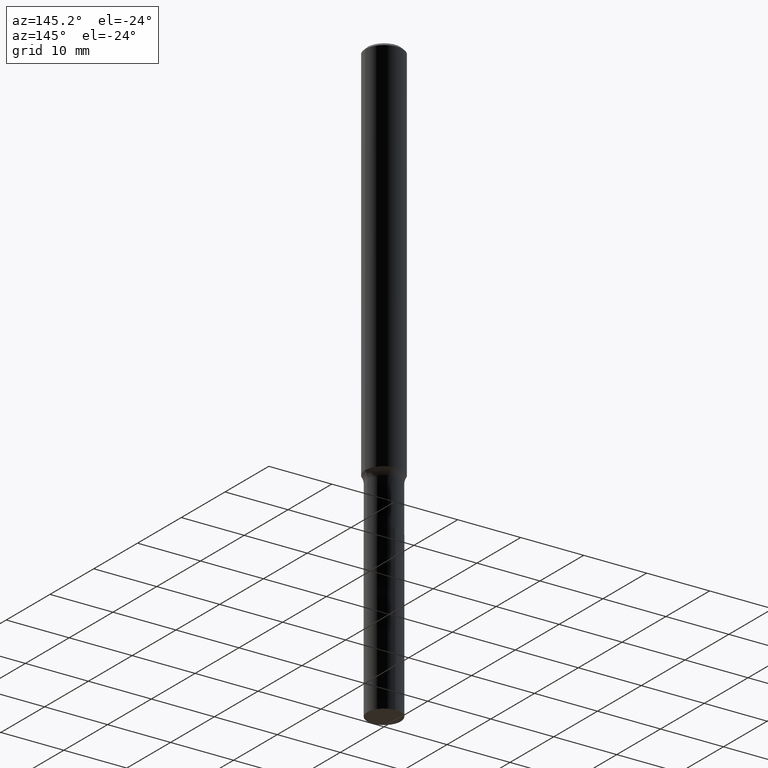
[diagram: clean part render]
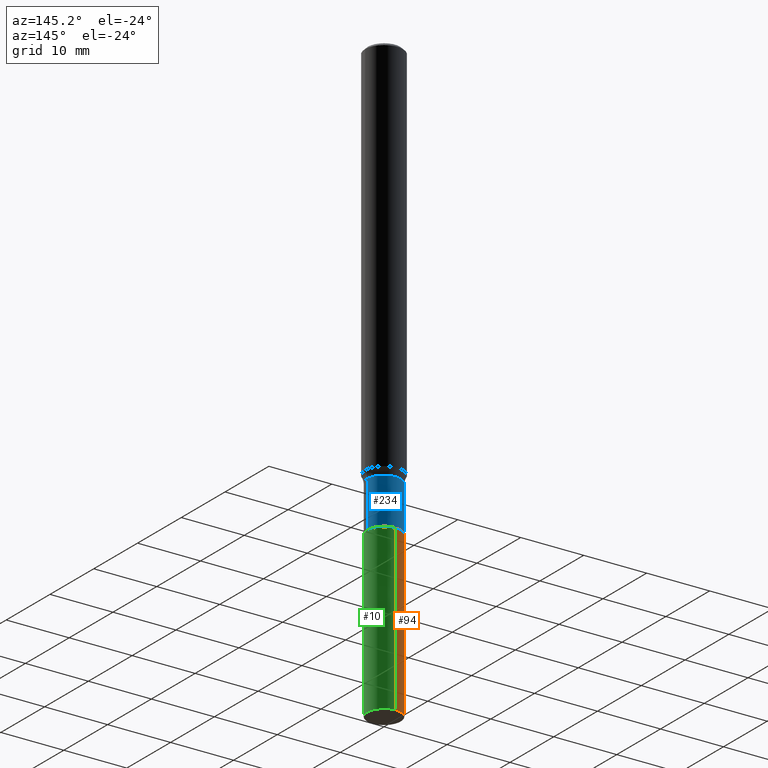
[diagram: same view with three faces highlighted in distinct colors, each labeled with its STEP entity id]
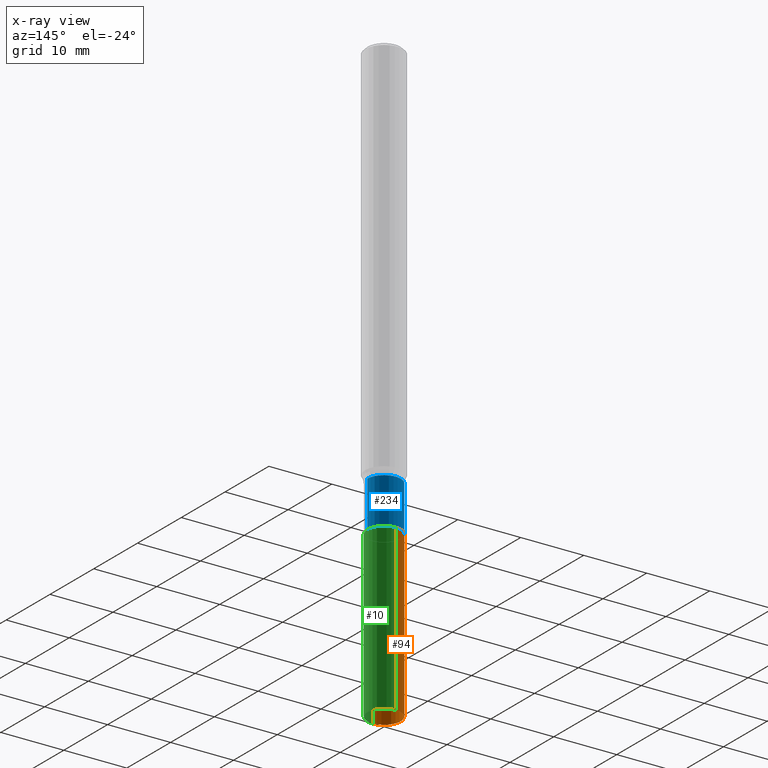
[diagram: x-ray of the same camera — body ghosted, the three highlighted faces saturated]
A machine part, auxiliary view with three faces highlighted in distinct colors.
The next image is the same camera in x-ray (body ghosted, the three faces saturated) — at least one of them is partly hidden behind the body in this view.
Their STEP definitions:

[orange] entity #94 — the highlighted cylindrical surface (edge-blend (fillet) strip) has radius 2.6543 mm, axis along (-0, 0, 1).
#3 = DIRECTION ( 'NONE',  ( -2.445596028614988658E-29, 3.491299149082546393E-15, 1.000000000000000000 ) ) ;
#23 = VECTOR ( 'NONE', #367, 39.37007874015748143 ) ;
#28 = CARTESIAN_POINT ( 'NONE',  ( -7.297195998181482598E-16, -0.1045000000000094603, -2.716199999999999282 ) ) ;
#36 = CARTESIAN_POINT ( 'NONE',  ( -7.297195998181233121E-16, -0.1045000000000130547, -3.740200000000000191 ) ) ;
#48 = DIRECTION ( 'NONE',  ( -2.445596028614988658E-29, 3.491299149082546788E-15, 1.000000000000000000 ) ) ;
#62 = VERTEX_POINT ( 'NONE', #28 ) ;
#86 = EDGE_LOOP ( 'NONE', ( #171, #411, #158, #355 ) ) ;
#94 = ADVANCED_FACE ( 'NONE', ( #427 ), #392, .T. ) ;
#100 = AXIS2_PLACEMENT_3D ( 'NONE', #226, #441, #154 ) ;
#105 = VERTEX_POINT ( 'NONE', #403 ) ;
#106 = EDGE_CURVE ( 'NONE', #105, #62, #463, .T. ) ;
#116 = DIRECTION ( 'NONE',  ( -6.982962677686266711E-15, -1.000000000000000000, 5.228417212754571700E-15 ) ) ;
#117 = AXIS2_PLACEMENT_3D ( 'NONE', #225, #3, #116 ) ;
#121 = VERTEX_POINT ( 'NONE', #297 ) ;
#123 = VECTOR ( 'NONE', #48, 39.37007874015748143 ) ;
#144 = DIRECTION ( 'NONE',  ( -6.982962677686266711E-15, -1.000000000000000000, 5.228417212754571700E-15 ) ) ;
#149 = EDGE_CURVE ( 'NONE', #121, #435, #319, .T. ) ;
#154 = DIRECTION ( 'NONE',  ( -6.982962677686266711E-15, -1.000000000000000000, 5.228417212754571700E-15 ) ) ;
#158 = ORIENTED_EDGE ( 'NONE', *, *, #194, .T. ) ;
#171 = ORIENTED_EDGE ( 'NONE', *, *, #227, .F. ) ;
#180 = CARTESIAN_POINT ( 'NONE',  ( 6.642382371360067283E-29, -9.483561612565751485E-15, -2.716199999999999726 ) ) ;
#194 = EDGE_CURVE ( 'NONE', #435, #62, #369, .T. ) ;
#225 = CARTESIAN_POINT ( 'NONE',  ( 9.146672704661818171E-29, -1.305865194122628245E-14, -3.740200000000000635 ) ) ;
#226 = CARTESIAN_POINT ( 'NONE',  ( 6.642382371360067283E-29, -9.483561612565751485E-15, -2.716199999999999726 ) ) ;
#227 = EDGE_CURVE ( 'NONE', #121, #105, #230, .T. ) ;
#230 = LINE ( 'NONE', #330, #123 ) ;
#269 = CARTESIAN_POINT ( 'NONE',  ( -7.297195998181482598E-16, -0.1045000000000094603, -2.716199999999999282 ) ) ;
#297 = CARTESIAN_POINT ( 'NONE',  ( 7.425171588693834510E-16, 0.1044999999999869228, -3.740200000000001079 ) ) ;
#319 = CIRCLE ( 'NONE', #117, 0.1044999999999999818 ) ;
#330 = CARTESIAN_POINT ( 'NONE',  ( 7.425171588693709278E-16, 0.1044999999999905171, -2.716200000000000170 ) ) ;
#355 = ORIENTED_EDGE ( 'NONE', *, *, #106, .F. ) ;
#367 = DIRECTION ( 'NONE',  ( -2.445596028614988658E-29, 3.491299149082546788E-15, 1.000000000000000000 ) ) ;
#369 = LINE ( 'NONE', #269, #23 ) ;
#388 = AXIS2_PLACEMENT_3D ( 'NONE', #180, #429, #144 ) ;
#392 = CYLINDRICAL_SURFACE ( 'NONE', #388, 0.1044999999999999818 ) ;
#403 = CARTESIAN_POINT ( 'NONE',  ( 7.425171588693961713E-16, 0.1044999999999905171, -2.716200000000000170 ) ) ;
#411 = ORIENTED_EDGE ( 'NONE', *, *, #149, .T. ) ;
#427 = FACE_OUTER_BOUND ( 'NONE', #86, .T. ) ;
#429 = DIRECTION ( 'NONE',  ( -2.445596028614988658E-29, 3.491299149082546393E-15, 1.000000000000000000 ) ) ;
#435 = VERTEX_POINT ( 'NONE', #36 ) ;
#441 = DIRECTION ( 'NONE',  ( -2.445596028614988658E-29, 3.491299149082546393E-15, 1.000000000000000000 ) ) ;
#463 = CIRCLE ( 'NONE', #100, 0.1044999999999999818 ) ;

[blue] entity #234 — the highlighted cylindrical surface (edge-blend (fillet) strip) has radius 2.6543 mm, axis along (-0, 0, 1).
#7 = DIRECTION ( 'NONE',  ( 1.000000000000000000, -6.982962677686266711E-15, 4.876176775795936353E-29 ) ) ;
#15 = EDGE_LOOP ( 'NONE', ( #82, #249, #150, #457 ) ) ;
#20 = CARTESIAN_POINT ( 'NONE',  ( 0.1044999999999999818, -1.021153547171454451E-14, -2.715699999999999559 ) ) ;
#42 = LINE ( 'NONE', #372, #373 ) ;
#45 = VERTEX_POINT ( 'NONE', #324 ) ;
#52 = DIRECTION ( 'NONE',  ( 1.000000000000000000, -6.982962677686273810E-15, 0.000000000000000000 ) ) ;
#57 = EDGE_CURVE ( 'NONE', #278, #45, #327, .T. ) ;
#59 = LINE ( 'NONE', #314, #379 ) ;
#82 = ORIENTED_EDGE ( 'NONE', *, *, #329, .T. ) ;
#93 = DIRECTION ( 'NONE',  ( -2.445468806185136597E-29, 3.491481338843145583E-15, 1.000000000000000000 ) ) ;
#150 = ORIENTED_EDGE ( 'NONE', *, *, #57, .F. ) ;
#163 = EDGE_CURVE ( 'NONE', #364, #278, #42, .T. ) ;
#179 = AXIS2_PLACEMENT_3D ( 'NONE', #326, #353, #398 ) ;
#192 = DIRECTION ( 'NONE',  ( -2.445468806185136877E-29, 3.491481338843145188E-15, 1.000000000000000000 ) ) ;
#195 = CARTESIAN_POINT ( 'NONE',  ( -0.1044999999999999818, -8.238445714969977110E-15, -2.715699999999999559 ) ) ;
#198 = FACE_OUTER_BOUND ( 'NONE', #15, .T. ) ;
#201 = VERTEX_POINT ( 'NONE', #195 ) ;
#210 = AXIS2_PLACEMENT_3D ( 'NONE', #375, #331, #7 ) ;
#234 = ADVANCED_FACE ( 'NONE', ( #198 ), #299, .T. ) ;
#246 = CIRCLE ( 'NONE', #446, 0.1044999999999999818 ) ;
#249 = ORIENTED_EDGE ( 'NONE', *, *, #343, .T. ) ;
#278 = VERTEX_POINT ( 'NONE', #346 ) ;
#299 = CYLINDRICAL_SURFACE ( 'NONE', #210, 0.1044999999999999679 ) ;
#314 = CARTESIAN_POINT ( 'NONE',  ( -0.1044999999999999679, 7.425171588693044663E-16, -5.140287169316375031E-30 ) ) ;
#324 = CARTESIAN_POINT ( 'NONE',  ( -0.1044999999999999540, -8.238445714969977110E-15, -2.428800000000000292 ) ) ;
#326 = CARTESIAN_POINT ( 'NONE',  ( 5.939554636462459745E-29, -8.480109875782233368E-15, -2.428800000000000292 ) ) ;
#327 = CIRCLE ( 'NONE', #179, 0.1044999999999999540 ) ;
#329 = EDGE_CURVE ( 'NONE', #364, #201, #246, .T. ) ;
#331 = DIRECTION ( 'NONE',  ( -2.445468806185136597E-29, 3.491481338843145583E-15, 1.000000000000000000 ) ) ;
#343 = EDGE_CURVE ( 'NONE', #201, #45, #59, .T. ) ;
#346 = CARTESIAN_POINT ( 'NONE',  ( 0.1044999999999999540, -9.209829475600448681E-15, -2.428800000000000292 ) ) ;
#353 = DIRECTION ( 'NONE',  ( -2.445468806185136597E-29, 3.491481338843145583E-15, 1.000000000000000000 ) ) ;
#364 = VERTEX_POINT ( 'NONE', #20 ) ;
#372 = CARTESIAN_POINT ( 'NONE',  ( 0.1044999999999999679, -7.297195998182146228E-16, 5.095604730706752119E-30 ) ) ;
#373 = VECTOR ( 'NONE', #192, 39.37007874015748143 ) ;
#375 = CARTESIAN_POINT ( 'NONE',  ( 0.000000000000000000, 0.000000000000000000, 0.000000000000000000 ) ) ;
#377 = CARTESIAN_POINT ( 'NONE',  ( 6.641159636956974482E-29, -9.481815871896329192E-15, -2.715699999999999559 ) ) ;
#379 = VECTOR ( 'NONE', #386, 39.37007874015748143 ) ;
#386 = DIRECTION ( 'NONE',  ( -2.445468806185136877E-29, 3.491481338843145188E-15, 1.000000000000000000 ) ) ;
#398 = DIRECTION ( 'NONE',  ( 1.000000000000000000, -6.982962677686276177E-15, 0.000000000000000000 ) ) ;
#446 = AXIS2_PLACEMENT_3D ( 'NONE', #377, #93, #52 ) ;
#457 = ORIENTED_EDGE ( 'NONE', *, *, #163, .F. ) ;

[green] entity #10 — the highlighted cylindrical surface (edge-blend (fillet) strip) has radius 2.6543 mm, axis along (-0, 0, 1).
#10 = ADVANCED_FACE ( 'NONE', ( #361 ), #254, .T. ) ;
#23 = VECTOR ( 'NONE', #367, 39.37007874015748143 ) ;
#28 = CARTESIAN_POINT ( 'NONE',  ( -7.297195998181482598E-16, -0.1045000000000094603, -2.716199999999999282 ) ) ;
#36 = CARTESIAN_POINT ( 'NONE',  ( -7.297195998181233121E-16, -0.1045000000000130547, -3.740200000000000191 ) ) ;
#48 = DIRECTION ( 'NONE',  ( -2.445596028614988658E-29, 3.491299149082546788E-15, 1.000000000000000000 ) ) ;
#62 = VERTEX_POINT ( 'NONE', #28 ) ;
#74 = CARTESIAN_POINT ( 'NONE',  ( 9.146672704661818171E-29, -1.305865194122628245E-14, -3.740200000000000635 ) ) ;
#85 = DIRECTION ( 'NONE',  ( -2.445596028614988658E-29, 3.491299149082546393E-15, 1.000000000000000000 ) ) ;
#105 = VERTEX_POINT ( 'NONE', #403 ) ;
#121 = VERTEX_POINT ( 'NONE', #297 ) ;
#123 = VECTOR ( 'NONE', #48, 39.37007874015748143 ) ;
#126 = EDGE_CURVE ( 'NONE', #435, #121, #261, .T. ) ;
#129 = AXIS2_PLACEMENT_3D ( 'NONE', #74, #85, #336 ) ;
#187 = DIRECTION ( 'NONE',  ( -2.445596028614988658E-29, 3.491299149082546393E-15, 1.000000000000000000 ) ) ;
#189 = AXIS2_PLACEMENT_3D ( 'NONE', #339, #303, #190 ) ;
#190 = DIRECTION ( 'NONE',  ( -6.982962677686266711E-15, -1.000000000000000000, 5.228417212754571700E-15 ) ) ;
#194 = EDGE_CURVE ( 'NONE', #435, #62, #369, .T. ) ;
#227 = EDGE_CURVE ( 'NONE', #121, #105, #230, .T. ) ;
#230 = LINE ( 'NONE', #330, #123 ) ;
#232 = EDGE_LOOP ( 'NONE', ( #420, #236, #444, #266 ) ) ;
#236 = ORIENTED_EDGE ( 'NONE', *, *, #227, .T. ) ;
#248 = EDGE_CURVE ( 'NONE', #62, #105, #263, .T. ) ;
#254 = CYLINDRICAL_SURFACE ( 'NONE', #334, 0.1044999999999999818 ) ;
#261 = CIRCLE ( 'NONE', #129, 0.1044999999999999818 ) ;
#263 = CIRCLE ( 'NONE', #189, 0.1044999999999999818 ) ;
#266 = ORIENTED_EDGE ( 'NONE', *, *, #194, .F. ) ;
#269 = CARTESIAN_POINT ( 'NONE',  ( -7.297195998181482598E-16, -0.1045000000000094603, -2.716199999999999282 ) ) ;
#297 = CARTESIAN_POINT ( 'NONE',  ( 7.425171588693834510E-16, 0.1044999999999869228, -3.740200000000001079 ) ) ;
#303 = DIRECTION ( 'NONE',  ( -2.445596028614988658E-29, 3.491299149082546393E-15, 1.000000000000000000 ) ) ;
#317 = CARTESIAN_POINT ( 'NONE',  ( 6.642382371360067283E-29, -9.483561612565751485E-15, -2.716199999999999726 ) ) ;
#321 = DIRECTION ( 'NONE',  ( -6.982962677686266711E-15, -1.000000000000000000, 5.228417212754571700E-15 ) ) ;
#330 = CARTESIAN_POINT ( 'NONE',  ( 7.425171588693709278E-16, 0.1044999999999905171, -2.716200000000000170 ) ) ;
#334 = AXIS2_PLACEMENT_3D ( 'NONE', #317, #187, #321 ) ;
#336 = DIRECTION ( 'NONE',  ( -6.982962677686266711E-15, -1.000000000000000000, 5.228417212754571700E-15 ) ) ;
#339 = CARTESIAN_POINT ( 'NONE',  ( 6.642382371360067283E-29, -9.483561612565751485E-15, -2.716199999999999726 ) ) ;
#361 = FACE_OUTER_BOUND ( 'NONE', #232, .T. ) ;
#367 = DIRECTION ( 'NONE',  ( -2.445596028614988658E-29, 3.491299149082546788E-15, 1.000000000000000000 ) ) ;
#369 = LINE ( 'NONE', #269, #23 ) ;
#403 = CARTESIAN_POINT ( 'NONE',  ( 7.425171588693961713E-16, 0.1044999999999905171, -2.716200000000000170 ) ) ;
#420 = ORIENTED_EDGE ( 'NONE', *, *, #126, .T. ) ;
#435 = VERTEX_POINT ( 'NONE', #36 ) ;
#444 = ORIENTED_EDGE ( 'NONE', *, *, #248, .F. ) ;